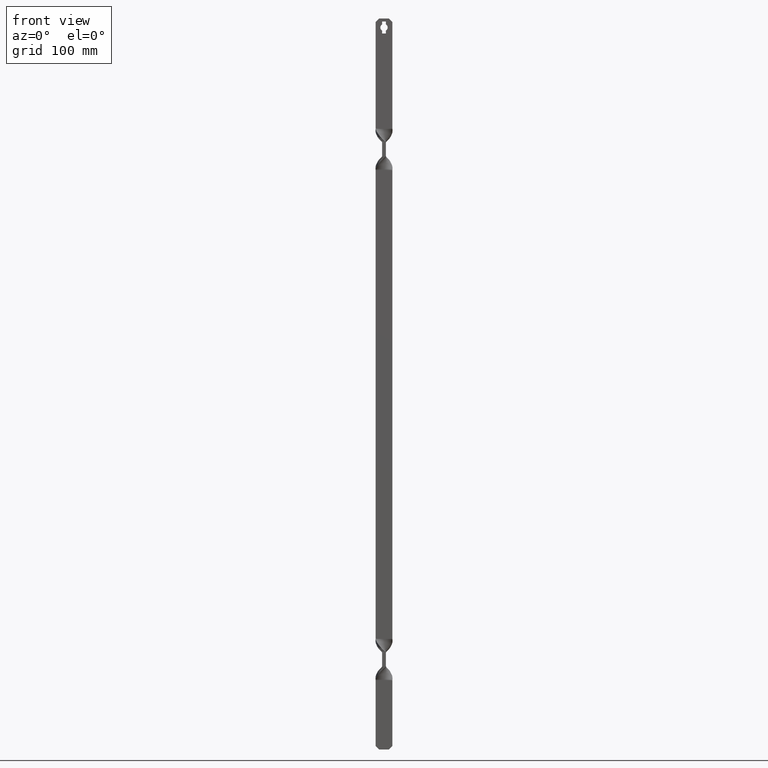
[diagram: clean part render]
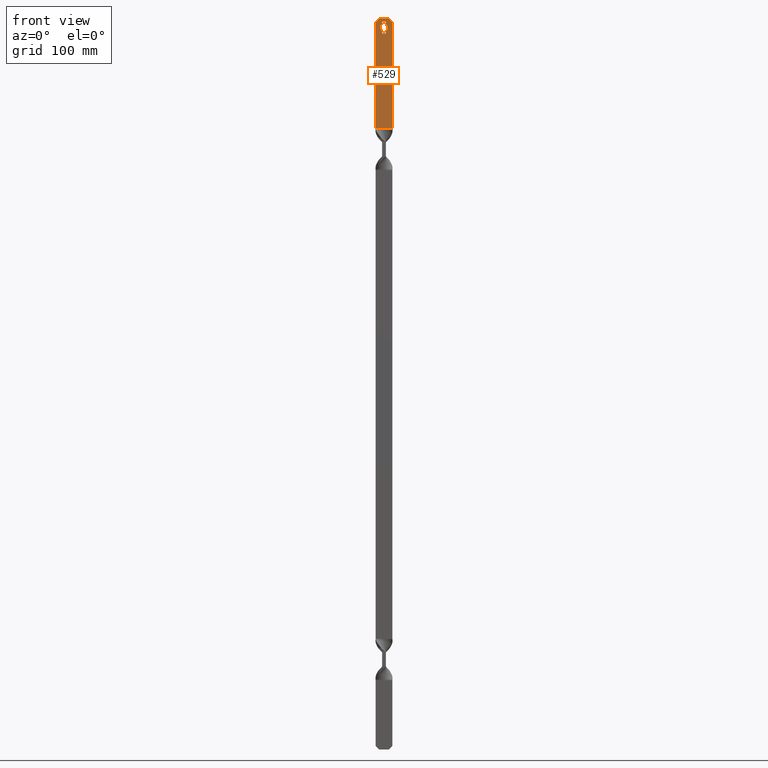
[diagram: same view with one face highlighted and labeled with its STEP entity id]
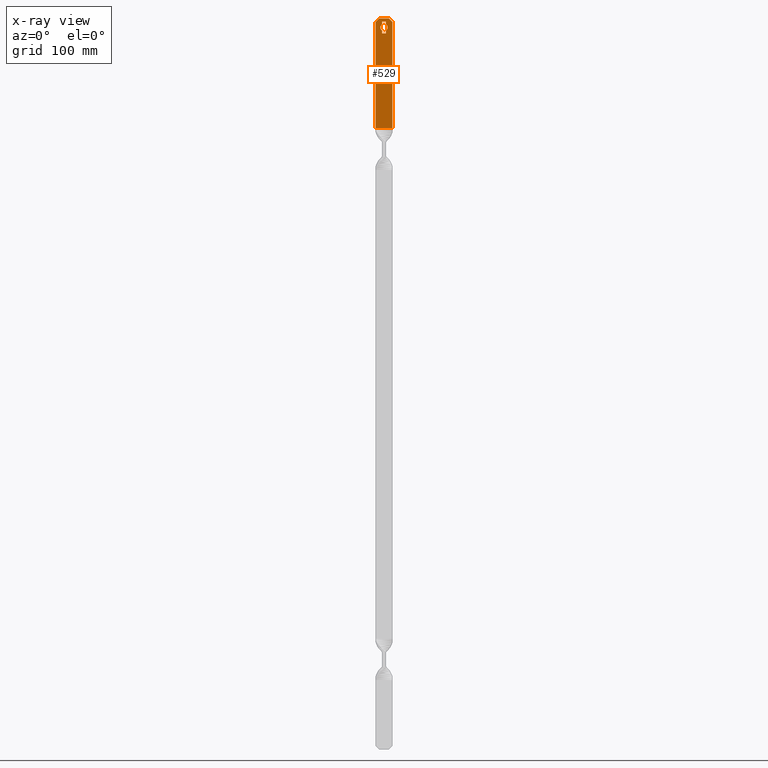
[diagram: x-ray of the same camera — body ghosted, the highlighted face saturated]
A machine part, front view. The second image highlights one B-rep face of the part: STEP entity #529.
The next image is the same camera in x-ray: the body ghosted, the highlighted face saturated — about 0% of this face is hidden behind the body in this view.
In plain terms, the highlighted face is a freeform B-spline surface patch.
Its self-contained STEP definition (entity closure, byte-faithful):
#49=CARTESIAN_POINT('',(6.999999999999780,5.684342E-014,606.000016932841960));
#50=VERTEX_POINT('',#49);
#51=CARTESIAN_POINT('',(3.999999999999885,3.248195E-014,609.000016932841050));
#52=VERTEX_POINT('',#51);
#53=CARTESIAN_POINT('',(6.999999999999780,5.684342E-014,606.000016932841960));
#54=CARTESIAN_POINT('',(3.999999999999885,3.248195E-014,609.000016932841050));
#55=QUASI_UNIFORM_CURVE('',1,(#53,#54),.UNSPECIFIED.,.F.,.U.);
#56=EDGE_CURVE('',#50,#52,#55,.T.);
#94=CARTESIAN_POINT('',(-7.000000000000110,-5.684342E-014,606.000016932841050));
#95=VERTEX_POINT('',#94);
#101=CARTESIAN_POINT('',(-4.000000000000116,-3.248195E-014,609.000016932841050));
#102=VERTEX_POINT('',#101);
#103=CARTESIAN_POINT('',(-4.000000000000116,-3.248195E-014,609.000016932841050));
#104=CARTESIAN_POINT('',(-7.000000000000110,-5.684342E-014,606.000016932841050));
#105=QUASI_UNIFORM_CURVE('',1,(#103,#104),.UNSPECIFIED.,.F.,.U.);
#106=EDGE_CURVE('',#102,#95,#105,.T.);
#130=CARTESIAN_POINT('',(1.550000073620950,1.236091E-013,598.873214767922040));
#131=VERTEX_POINT('',#130);
#132=CARTESIAN_POINT('',(1.550000073621005,-2.220446E-013,604.126785232078080));
#133=VERTEX_POINT('',#132);
#134=CARTESIAN_POINT('',(1.550000073621077,-2.220446E-013,598.873214767921810));
#135=CARTESIAN_POINT('',(3.050000144867126,-2.220446E-013,599.758327183078680));
#136=CARTESIAN_POINT('',(3.050000144867126,-2.220446E-013,601.500000000000000));
#137=CARTESIAN_POINT('',(3.050000144867126,-2.220446E-013,603.241672816921550));
#138=CARTESIAN_POINT('',(1.550000073621119,-2.220446E-013,604.126785232078300));
#146=(BOUNDED_CURVE()B_SPLINE_CURVE(2,(#134,#135,#136,#137,#138),.UNSPECIFIED.,.F.,.U.)B_SPLINE_CURVE_WITH_KNOTS((3,2,3),(0.0,0.500000000000000,1.0),.UNSPECIFIED.)CURVE()GEOMETRIC_REPRESENTATION_ITEM()RATIONAL_B_SPLINE_CURVE((1.0,0.868388369714702,1.0,0.868388369714702,1.0))REPRESENTATION_ITEM(''));
#147=EDGE_CURVE('',#131,#133,#146,.T.);
#186=CARTESIAN_POINT('',(1.550000073621005,-2.220446E-013,596.499999762512970));
#187=VERTEX_POINT('',#186);
#188=CARTESIAN_POINT('',(1.550000073621005,-2.220446E-013,596.499999762512970));
#189=CARTESIAN_POINT('',(1.550000073620950,1.236091E-013,598.873214767922040));
#190=QUASI_UNIFORM_CURVE('',1,(#188,#189),.UNSPECIFIED.,.F.,.U.);
#191=EDGE_CURVE('',#187,#131,#190,.T.);
#214=CARTESIAN_POINT('',(-1.550000073621090,-2.220446E-013,596.499999762512970));
#215=VERTEX_POINT('',#214);
#216=CARTESIAN_POINT('',(-1.550000073621090,-2.220446E-013,596.499999762512970));
#217=CARTESIAN_POINT('',(1.550000073621005,-2.220446E-013,596.499999762512970));
#218=QUASI_UNIFORM_CURVE('',1,(#216,#217),.UNSPECIFIED.,.F.,.U.);
#219=EDGE_CURVE('',#215,#187,#218,.T.);
#242=CARTESIAN_POINT('',(-1.550000073620845,-2.220446E-013,598.873214767922040));
#243=VERTEX_POINT('',#242);
#244=CARTESIAN_POINT('',(-1.550000073620845,-2.220446E-013,598.873214767922040));
#245=CARTESIAN_POINT('',(-1.550000073621090,-2.220446E-013,596.499999762512970));
#246=QUASI_UNIFORM_CURVE('',1,(#244,#245),.UNSPECIFIED.,.F.,.U.);
#247=EDGE_CURVE('',#243,#215,#246,.T.);
#279=CARTESIAN_POINT('',(-1.550000073621090,-2.220446E-013,604.126785232078080));
#280=VERTEX_POINT('',#279);
#281=CARTESIAN_POINT('',(-1.550000073621155,-2.220446E-013,604.126785232078190));
#282=CARTESIAN_POINT('',(-3.050000144867169,-2.220446E-013,603.241672816921440));
#283=CARTESIAN_POINT('',(-3.050000144867169,-2.220446E-013,601.500000000000000));
#284=CARTESIAN_POINT('',(-3.050000144867169,-2.220446E-013,599.758327183078680));
#285=CARTESIAN_POINT('',(-1.550000073620973,-2.220446E-013,598.873214767921810));
#293=(BOUNDED_CURVE()B_SPLINE_CURVE(2,(#281,#282,#283,#284,#285),.UNSPECIFIED.,.F.,.U.)B_SPLINE_CURVE_WITH_KNOTS((3,2,3),(0.0,0.500000000000000,1.0),.UNSPECIFIED.)CURVE()GEOMETRIC_REPRESENTATION_ITEM()RATIONAL_B_SPLINE_CURVE((1.0,0.868388369714698,1.0,0.868388369714698,1.0))REPRESENTATION_ITEM(''));
#294=EDGE_CURVE('',#280,#243,#293,.T.);
#327=CARTESIAN_POINT('',(-1.550000073621090,-2.220446E-013,606.500000237487030));
#328=VERTEX_POINT('',#327);
#329=CARTESIAN_POINT('',(-1.550000073621090,-2.220446E-013,606.500000237487030));
#330=CARTESIAN_POINT('',(-1.550000073621090,-2.220446E-013,604.126785232078080));
#331=QUASI_UNIFORM_CURVE('',1,(#329,#330),.UNSPECIFIED.,.F.,.U.);
#332=EDGE_CURVE('',#328,#280,#331,.T.);
#355=CARTESIAN_POINT('',(1.550000073621005,-2.220446E-013,606.500000237487030));
#356=VERTEX_POINT('',#355);
#357=CARTESIAN_POINT('',(1.550000073621005,-2.220446E-013,606.500000237487030));
#358=CARTESIAN_POINT('',(-1.550000073621090,-2.220446E-013,606.500000237487030));
#359=QUASI_UNIFORM_CURVE('',1,(#357,#358),.UNSPECIFIED.,.F.,.U.);
#360=EDGE_CURVE('',#356,#328,#359,.T.);
#383=CARTESIAN_POINT('',(1.550000073621005,-2.220446E-013,604.126785232078080));
#384=CARTESIAN_POINT('',(1.550000073621005,-2.220446E-013,606.500000237487030));
#385=QUASI_UNIFORM_CURVE('',1,(#383,#384),.UNSPECIFIED.,.F.,.U.);
#386=EDGE_CURVE('',#133,#356,#385,.T.);
#409=CARTESIAN_POINT('',(-4.000000000000116,-3.248195E-014,609.000016932841050));
#410=CARTESIAN_POINT('',(3.999999999999885,3.248195E-014,609.000016932841050));
#411=QUASI_UNIFORM_CURVE('',1,(#409,#410),.UNSPECIFIED.,.F.,.U.);
#412=EDGE_CURVE('',#102,#52,#411,.T.);
#423=CARTESIAN_POINT('',(-7.000000000000110,-5.684342E-014,517.500000000000000));
#424=VERTEX_POINT('',#423);
#425=CARTESIAN_POINT('',(-7.000000000000110,-5.684342E-014,606.000016932841050));
#426=CARTESIAN_POINT('',(-7.000000000000110,-5.684342E-014,517.500000000000000));
#427=QUASI_UNIFORM_CURVE('',1,(#425,#426),.UNSPECIFIED.,.F.,.U.);
#428=EDGE_CURVE('',#95,#424,#427,.T.);
#487=CARTESIAN_POINT('',(6.999999999999890,5.681219E-014,517.500000000000000));
#488=VERTEX_POINT('',#487);
#489=CARTESIAN_POINT('',(6.999999999999780,5.684342E-014,606.000016932841960));
#490=CARTESIAN_POINT('',(6.999999999999890,5.681219E-014,517.500000000000000));
#491=QUASI_UNIFORM_CURVE('',1,(#489,#490),.UNSPECIFIED.,.F.,.U.);
#492=EDGE_CURVE('',#50,#488,#491,.T.);
#502=CARTESIAN_POINT('',(7.699299972865173,-5.684342E-014,512.929575312256360));
#503=CARTESIAN_POINT('',(-7.699300348374656,-5.684342E-014,512.929575312256360));
#504=CARTESIAN_POINT('',(7.699299972865173,-5.684342E-014,613.570424441032860));
#505=CARTESIAN_POINT('',(-7.699300348374656,-5.684342E-014,613.570424441032860));
#506=B_SPLINE_SURFACE_WITH_KNOTS('',1,1,((#502,#504),(#503,#505)),.UNSPECIFIED.,.F.,.F.,.U.,(2,2),(2,2),(0.0,15.398600321239829),(0.0,100.640849128776490),.UNSPECIFIED.);
#507=ORIENTED_EDGE('',*,*,#412,.F.);
#508=ORIENTED_EDGE('',*,*,#106,.T.);
#509=ORIENTED_EDGE('',*,*,#428,.T.);
#510=CARTESIAN_POINT('',(-7.000000000000110,-5.684342E-014,517.500000000000000));
#511=CARTESIAN_POINT('',(6.999999999999890,5.681219E-014,517.500000000000000));
#512=QUASI_UNIFORM_CURVE('',1,(#510,#511),.UNSPECIFIED.,.F.,.U.);
#513=EDGE_CURVE('',#424,#488,#512,.T.);
#514=ORIENTED_EDGE('',*,*,#513,.T.);
#515=ORIENTED_EDGE('',*,*,#492,.F.);
#516=ORIENTED_EDGE('',*,*,#56,.T.);
#517=EDGE_LOOP('',(#507,#508,#509,#514,#515,#516));
#518=FACE_OUTER_BOUND('',#517,.T.);
#519=ORIENTED_EDGE('',*,*,#360,.F.);
#520=ORIENTED_EDGE('',*,*,#386,.F.);
#521=ORIENTED_EDGE('',*,*,#147,.F.);
#522=ORIENTED_EDGE('',*,*,#191,.F.);
#523=ORIENTED_EDGE('',*,*,#219,.F.);
#524=ORIENTED_EDGE('',*,*,#247,.F.);
#525=ORIENTED_EDGE('',*,*,#294,.F.);
#526=ORIENTED_EDGE('',*,*,#332,.F.);
#527=EDGE_LOOP('',(#519,#520,#521,#522,#523,#524,#525,#526));
#528=FACE_BOUND('',#527,.T.);
#529=ADVANCED_FACE('',(#518,#528),#506,.F.);